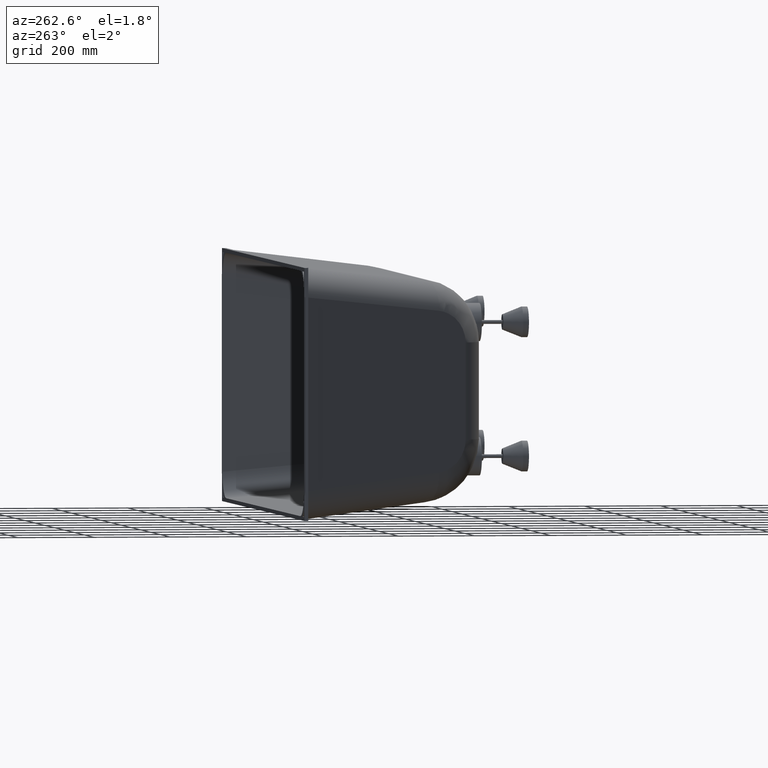
[diagram: clean part render]
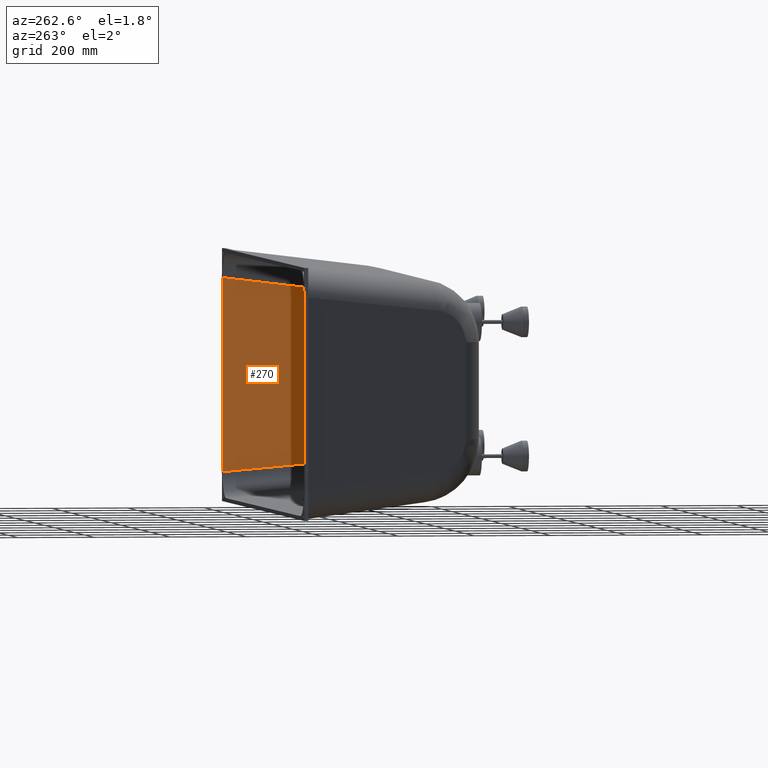
[diagram: same view with one face highlighted and labeled with its STEP entity id]
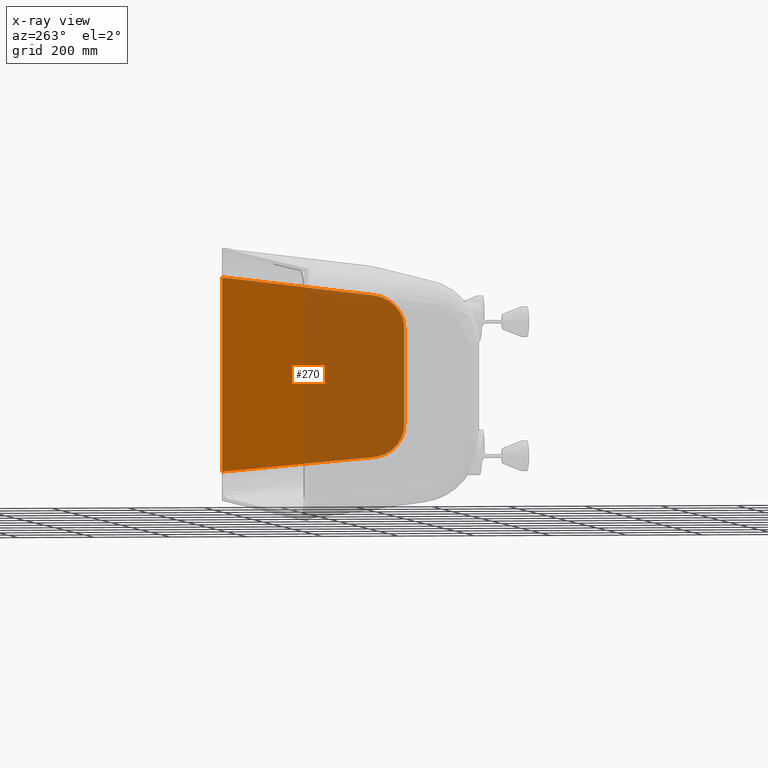
[diagram: x-ray of the same camera — body ghosted, the highlighted face saturated]
A machine part, auxiliary view. The second image highlights one B-rep face of the part: STEP entity #270.
The next image is the same camera in x-ray: the body ghosted, the highlighted face saturated — about 52% of this face is hidden behind the body in this view.
In plain terms, the highlighted planar face has unit normal (0.8933, -0.4494, 0).
Its self-contained STEP definition (entity closure, byte-faithful):
#155 = LINE ( 'NONE', #4626, #9875 ) ;
#270 = ADVANCED_FACE ( 'NONE', ( #6658 ), #9338, .F. ) ;
#528 = ORIENTED_EDGE ( 'NONE', *, *, #989, .T. ) ;
#989 = EDGE_CURVE ( 'NONE', #6770, #8964, #8813, .T. ) ;
#1403 = VERTEX_POINT ( 'NONE', #4576 ) ;
#2573 = ORIENTED_EDGE ( 'NONE', *, *, #10134, .F. ) ;
#2623 = EDGE_LOOP ( 'NONE', ( #528, #9196, #2573, #9878, #8676, #8819 ) ) ;
#3562 = VECTOR ( 'NONE', #7040, 1000.000000000000200 ) ;
#3709 = VERTEX_POINT ( 'NONE', #8744 ) ;
#3930 = VERTEX_POINT ( 'NONE', #7744 ) ;
#4224 = LINE ( 'NONE', #7138, #5609 ) ;
#4576 = CARTESIAN_POINT ( 'NONE',  ( 637.3521904912773800, -372.9978907377464500, -210.9828422237283400 ) ) ;
#4591 = DIRECTION ( 'NONE',  ( 0.4471435776645231700, 0.8888119278474395600, -0.1003791704961172800 ) ) ;
#4626 = CARTESIAN_POINT ( 'NONE',  ( 828.0023801867015400, 5.967996534382409700, -253.7818644002520900 ) ) ;
#5609 = VECTOR ( 'NONE', #7149, 1000.000000000000000 ) ;
#5647 = CARTESIAN_POINT ( 'NONE',  ( 825.0000000000000000, 0.0000000000000000000, -253.1078606848700800 ) ) ;
#6047 = EDGE_CURVE ( 'NONE', #6770, #3930, #6225, .T. ) ;
#6137 =( BOUNDED_CURVE ( )  B_SPLINE_CURVE ( 3, ( #9346, #9050, #9419, #9453 ),
 .UNSPECIFIED., .F., .T. ) 
 B_SPLINE_CURVE_WITH_KNOTS ( ( 4, 4 ),
 ( 4.824848813396103600, 6.283185307179586200 ),
 .UNSPECIFIED. ) 
 CURVE ( )  GEOMETRIC_REPRESENTATION_ITEM ( )  RATIONAL_B_SPLINE_CURVE ( ( 1.000000000000000000, 0.8304858769412613000, 0.8304858769412613000, 1.000000000000000000 ) ) 
 REPRESENTATION_ITEM ( '' )  );
#6195 = DIRECTION ( 'NONE',  ( 0.0000000000000000000, 0.0000000000000000000, -1.000000000000000000 ) ) ;
#6225 = LINE ( 'NONE', #6933, #3562 ) ;
#6300 = EDGE_CURVE ( 'NONE', #3930, #3709, #6137, .T. ) ;
#6658 = FACE_OUTER_BOUND ( 'NONE', #2623, .T. ) ;
#6770 = VERTEX_POINT ( 'NONE', #8656 ) ;
#6916 = VECTOR ( 'NONE', #6195, 1000.000000000000000 ) ;
#6933 = CARTESIAN_POINT ( 'NONE',  ( 799.2766832787776800, -51.13165405402141800, 247.3332385637793600 ) ) ;
#6953 =( BOUNDED_CURVE ( )  B_SPLINE_CURVE ( 3, ( #8559, #8237, #8213, #8202 ),
 .UNSPECIFIED., .F., .T. ) 
 B_SPLINE_CURVE_WITH_KNOTS ( ( 4, 4 ),
 ( 3.141592653589793100, 4.599929147373275700 ),
 .UNSPECIFIED. ) 
 CURVE ( )  GEOMETRIC_REPRESENTATION_ITEM ( )  RATIONAL_B_SPLINE_CURVE ( ( 1.000000000000000000, 0.8304858769412613000, 0.8304858769412613000, 1.000000000000000000 ) ) 
 REPRESENTATION_ITEM ( '' )  );
#7040 = DIRECTION ( 'NONE',  ( -0.4471435776645231200, -0.8888119278474394500, -0.1003791704961174700 ) ) ;
#7138 = CARTESIAN_POINT ( 'NONE',  ( 599.3892388784411200, -448.4589414946903500, -126.5197825624869900 ) ) ;
#7149 = DIRECTION ( 'NONE',  ( 0.0000000000000000000, 0.0000000000000000000, -1.000000000000000000 ) ) ;
#7228 = VERTEX_POINT ( 'NONE', #8467 ) ;
#7405 = CARTESIAN_POINT ( 'NONE',  ( 825.0000000000000000, 0.0000000000000000000, 320.0000000000000000 ) ) ;
#7744 = CARTESIAN_POINT ( 'NONE',  ( 637.3521904912773800, -372.9978907377463900, 210.9828422237282300 ) ) ;
#8202 = CARTESIAN_POINT ( 'NONE',  ( 637.3521904912773800, -372.9978907377464500, -210.9828422237283400 ) ) ;
#8213 = CARTESIAN_POINT ( 'NONE',  ( 614.6264843941451100, -418.1710289798010100, -205.8811530998823100 ) ) ;
#8237 = CARTESIAN_POINT ( 'NONE',  ( 599.3892388784410100, -448.4589414946904100, -171.9800910804916300 ) ) ;
#8467 = CARTESIAN_POINT ( 'NONE',  ( 599.3892388784411200, -448.4589414946903500, -126.5197825624870800 ) ) ;
#8559 = CARTESIAN_POINT ( 'NONE',  ( 599.3892388784411200, -448.4589414946903500, -126.5197825624870800 ) ) ;
#8656 = CARTESIAN_POINT ( 'NONE',  ( 825.0000000000000000, 0.0000000000000000000, 253.1078606848699600 ) ) ;
#8676 = ORIENTED_EDGE ( 'NONE', *, *, #6300, .F. ) ;
#8737 = EDGE_CURVE ( 'NONE', #3709, #7228, #4224, .T. ) ;
#8744 = CARTESIAN_POINT ( 'NONE',  ( 599.3892388784411200, -448.4589414946903500, 126.5197825624869700 ) ) ;
#8813 = LINE ( 'NONE', #7405, #6916 ) ;
#8819 = ORIENTED_EDGE ( 'NONE', *, *, #6047, .F. ) ;
#8848 = CARTESIAN_POINT ( 'NONE',  ( 825.0000000000000000, 0.0000000000000000000, -320.0000000000000000 ) ) ;
#8964 = VERTEX_POINT ( 'NONE', #5647 ) ;
#9050 = CARTESIAN_POINT ( 'NONE',  ( 614.6264843941451100, -418.1710289798010100, 205.8811530998822300 ) ) ;
#9196 = ORIENTED_EDGE ( 'NONE', *, *, #9294, .F. ) ;
#9257 = AXIS2_PLACEMENT_3D ( 'NONE', #8848, #9300, #9288 ) ;
#9288 = DIRECTION ( 'NONE',  ( 0.0000000000000000000, 0.0000000000000000000, 1.000000000000000000 ) ) ;
#9294 = EDGE_CURVE ( 'NONE', #1403, #8964, #155, .T. ) ;
#9300 = DIRECTION ( 'NONE',  ( 0.8933238780124904700, -0.4494134499241484400, 0.0000000000000000000 ) ) ;
#9338 = PLANE ( 'NONE',  #9257 ) ;
#9346 = CARTESIAN_POINT ( 'NONE',  ( 637.3521904912773800, -372.9978907377463900, 210.9828422237282300 ) ) ;
#9419 = CARTESIAN_POINT ( 'NONE',  ( 599.3892388784410100, -448.4589414946904100, 171.9800910804915200 ) ) ;
#9453 = CARTESIAN_POINT ( 'NONE',  ( 599.3892388784411200, -448.4589414946903500, 126.5197825624869700 ) ) ;
#9875 = VECTOR ( 'NONE', #4591, 1000.000000000000100 ) ;
#9878 = ORIENTED_EDGE ( 'NONE', *, *, #8737, .F. ) ;
#10134 = EDGE_CURVE ( 'NONE', #7228, #1403, #6953, .T. ) ;